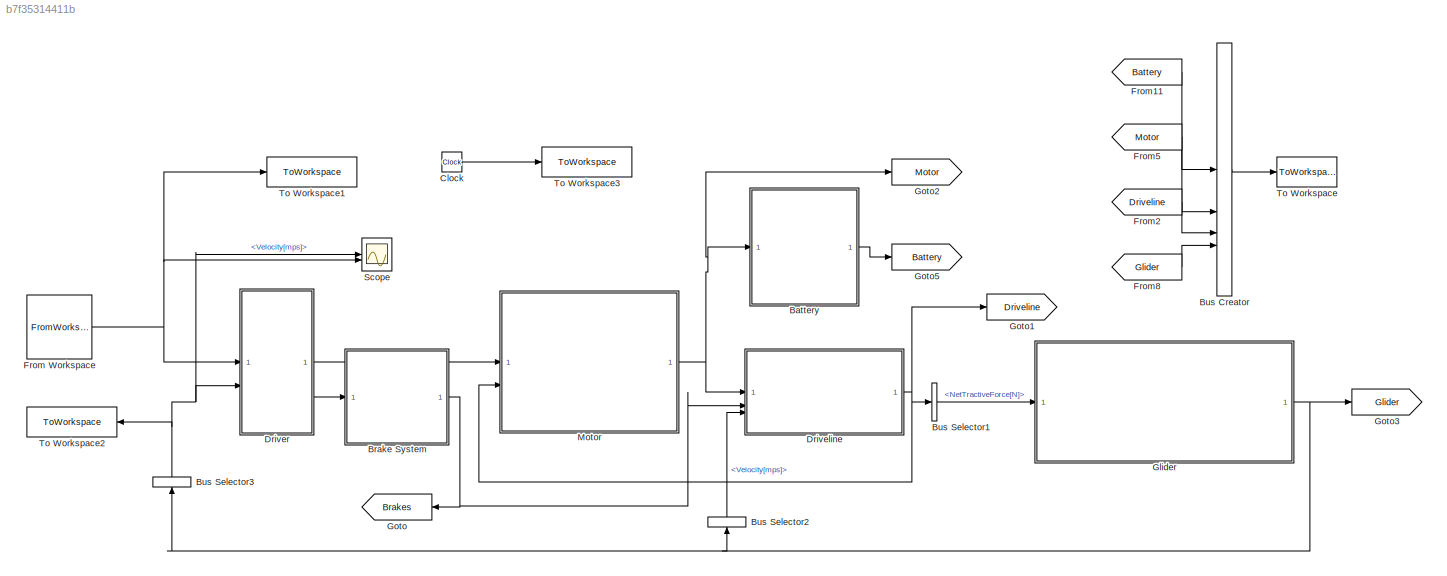
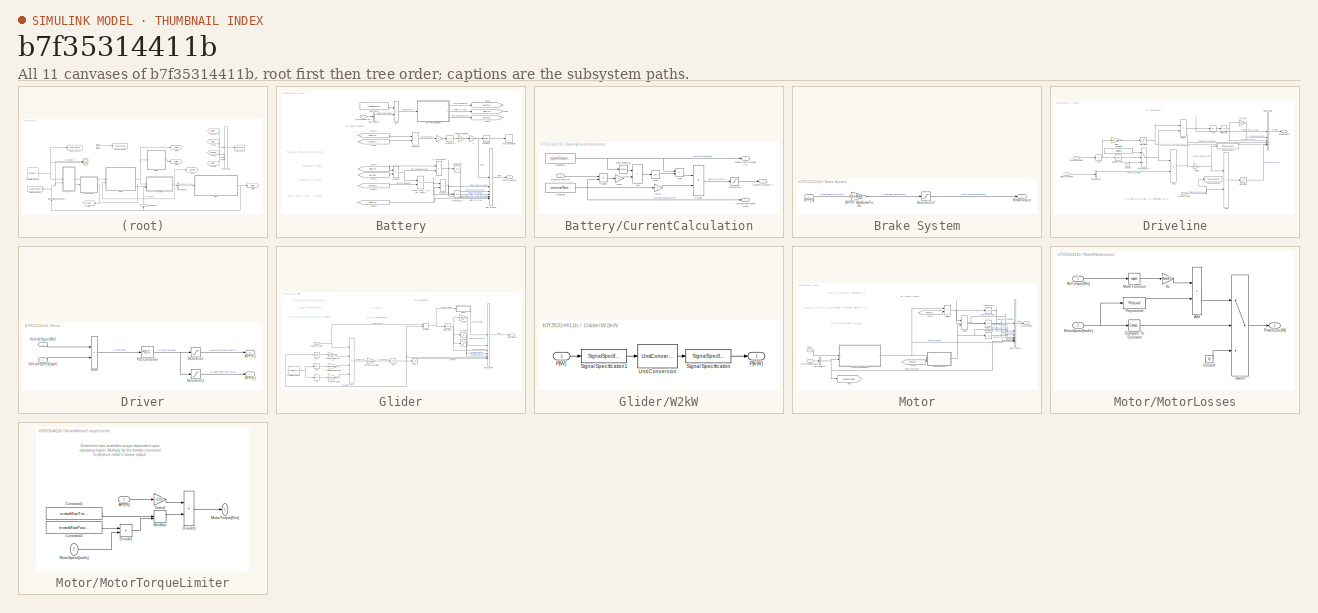
[diagram: thumbnail index - all 11 canvases of the model, root first then tree order]
MODEL slx_b7f35314411b
KIND model
CONFIG AbsTol = auto
CONFIG EnableMultiTasking = off
CONFIG FixedStep = auto
CONFIG MaxStep = auto
CONFIG MinStep = auto
CONFIG RelTol = 1e-3
CONFIG SampleTimeConstraint = Unconstrained
CONFIG SolverName = FixedStepAuto
CONFIG StartTime = 0.0
CONFIG StopTime = StopTime
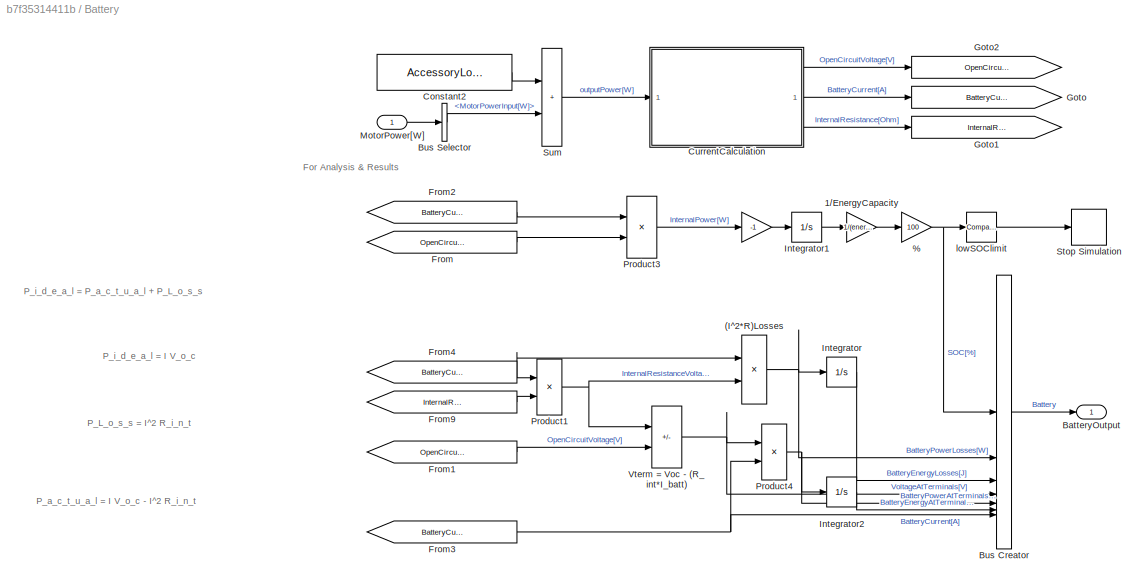
BLOCK [SubSystem] Battery
BLOCK [Gain] Battery/ 
  Gain = -1
BLOCK [Gain] Battery/%
  Gain = 100
BLOCK [Product] Battery/(I^2*R)Losses
  NameLocation = top
  RndMeth = Zero
BLOCK [Gain] Battery/1//EnergyCapacity
  Gain = 1/(energyCapacity*3600*1000)
BLOCK [Outport] Battery/BatteryOutput
  VectorParamsAs1DForOutWhenUnconnected = off
BLOCK [BusCreator] Battery/Bus Creator
  DisplayOption = bar
  InheritFromInputs = on
  Inputs = 7
BLOCK [BusSelector] Battery/Bus Selector
  OutputSignals = MotorPowerInput[W]
BLOCK [Constant] Battery/Constant2
  Value = AccessoryLoad
BLOCK [SubSystem] Battery/CurrentCalculation
BLOCK [Sum] Battery/CurrentCalculation/Add
  IconShape = rectangular
  Inputs = +-
BLOCK [Sum] Battery/CurrentCalculation/Add1
  IconShape = rectangular
  Inputs = +-
BLOCK [Outport] Battery/CurrentCalculation/BatteryCurrent[A]
  Port = 2
  VectorParamsAs1DForOutWhenUnconnected = off
BLOCK [Inport] Battery/CurrentCalculation/BatteryPower[W]
BLOCK [Constant] Battery/CurrentCalculation/Constant
  Value = internalResistance
BLOCK [Constant] Battery/CurrentCalculation/Constant1
  Value = openCircuitVoltage
BLOCK [Product] Battery/CurrentCalculation/Divide
  Inputs = */
BLOCK [Gain] Battery/CurrentCalculation/Gain
  Gain = 4
BLOCK [Gain] Battery/CurrentCalculation/Gain1
  Gain = 2
BLOCK [Outport] Battery/CurrentCalculation/InternalResistance[Ohm]
  Port = 3
  VectorParamsAs1DForOutWhenUnconnected = off
BLOCK [Math] Battery/CurrentCalculation/Math Function
  Operator = square
  SignedPower = on
BLOCK [Outport] Battery/CurrentCalculation/OpenCircuitVoltage[V]
  VectorParamsAs1DForOutWhenUnconnected = off
BLOCK [Product] Battery/CurrentCalculation/Product
  RndMeth = Zero
BLOCK [Saturate] Battery/CurrentCalculation/Saturation1
  LowerLimit = 0
  UpperLimit = 40
  ZeroCross = off
BLOCK [Sqrt] Battery/CurrentCalculation/Sqrt
BLOCK [From] Battery/From
  GotoTag = OpenCircuitVoltage_V
BLOCK [From] Battery/From1
  GotoTag = OpenCircuitVoltage_V
BLOCK [From] Battery/From2
  GotoTag = BatteryCurrent_A
BLOCK [From] Battery/From3
  GotoTag = BatteryCurrent_A
BLOCK [From] Battery/From4
  GotoTag = BatteryCurrent_A
BLOCK [From] Battery/From9
  GotoTag = InternalResistance_Ohm
BLOCK [Goto] Battery/Goto
  GotoTag = BatteryCurrent_A
BLOCK [Goto] Battery/Goto1
  GotoTag = InternalResistance_Ohm
BLOCK [Goto] Battery/Goto2
  GotoTag = OpenCircuitVoltage_V
BLOCK [Integrator] Battery/Integrator
  ZeroCross = off
BLOCK [Integrator] Battery/Integrator1
  InitialCondition = energyCapacity*3600*1000*initialSOC
  ZeroCross = off
BLOCK [Integrator] Battery/Integrator2
BLOCK [Inport] Battery/MotorPower[W]
BLOCK [Product] Battery/Product1
  RndMeth = Zero
BLOCK [Product] Battery/Product3
  RndMeth = Zero
BLOCK [Product] Battery/Product4
  RndMeth = Zero
BLOCK [Stop] Battery/Stop Simulation
BLOCK [Sum] Battery/Sum
  IconShape = rectangular
BLOCK [Sum] Battery/Vterm = Voc - (R_int*I_batt)
  IconShape = rectangular
  Inputs = -+
BLOCK [Reference] Battery/lowSOClimit  REF=simulink/Logic and Bit
Operations/Compare
To Constant
  SourceBlock = simulink/Logic and Bit\nOperations/Compare\nTo Constant
  SourceType = Compare To Constant
BLOCK [SubSystem] Brake System
BLOCK [Gain] Brake System/BPP% * MaxBrakeForce
  Gain = maxBrakeForce/100
BLOCK [Inport] Brake System/BPP[%]
BLOCK [Outport] Brake System/BrakeOutput
  VectorParamsAs1DForOutWhenUnconnected = off
BLOCK [Saturate] Brake System/Saturation2
  LowerLimit = -400
  UpperLimit = 0
  ZeroCross = off
BLOCK [BusCreator] Bus Creator
  DisplayOption = bar
  InheritFromInputs = on
  Inputs = 4
BLOCK [BusSelector] Bus Selector1
  OutputSignals = NetTractiveForce[N]
BLOCK [BusSelector] Bus Selector2
  NameLocation = right
  OutputSignals = Velocity[mps]
BLOCK [BusSelector] Bus Selector3
  NameLocation = right
  OutputSignals = Velocity[mps]
BLOCK [Clock] Clock
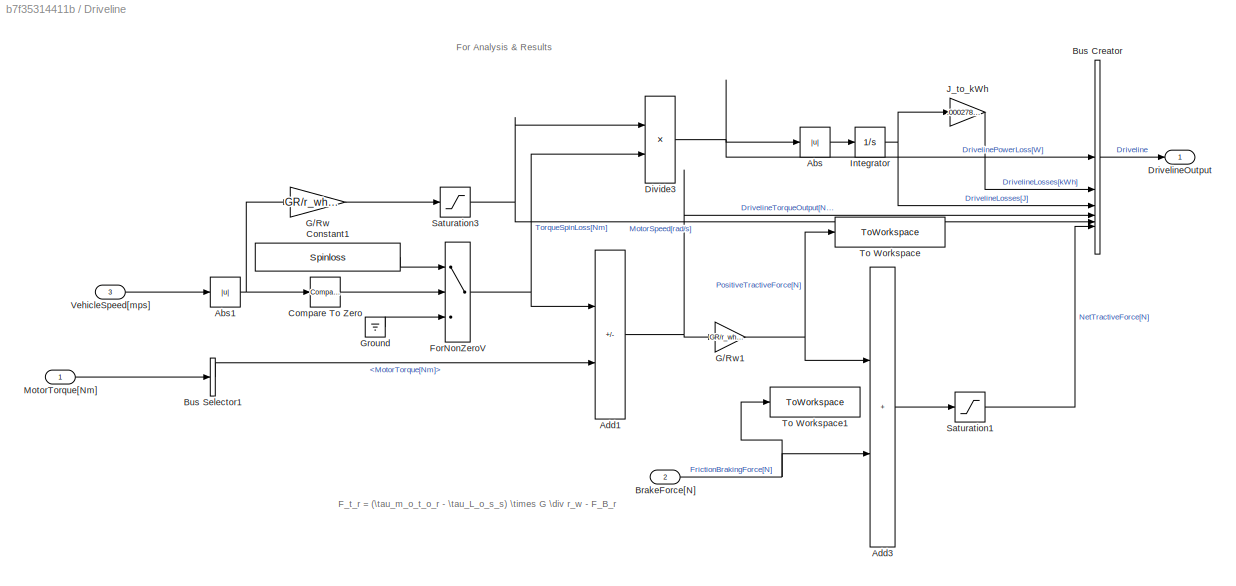
BLOCK [SubSystem] Driveline
BLOCK [Abs] Driveline/Abs
  SaturateOnIntegerOverflow = off
  ZeroCross = off
BLOCK [Abs] Driveline/Abs1
  SaturateOnIntegerOverflow = off
  ZeroCross = off
BLOCK [Sum] Driveline/Add1
  IconShape = rectangular
  Inputs = -+
BLOCK [Sum] Driveline/Add3
  IconShape = rectangular
BLOCK [Inport] Driveline/BrakeForce[N]
  Port = 2
BLOCK [BusCreator] Driveline/Bus Creator
  DisplayOption = bar
  InheritFromInputs = on
  Inputs = 6
BLOCK [BusSelector] Driveline/Bus Selector1
  OutputSignals = MotorTorque[Nm]
BLOCK [Reference] Driveline/Compare To Zero  REF=simulink/Logic and Bit
Operations/Compare
To Zero
  SourceBlock = simulink/Logic and Bit\nOperations/Compare\nTo Zero
  SourceType = Compare To Zero
BLOCK [Constant] Driveline/Constant1
  Value = Spinloss
BLOCK [Product] Driveline/Divide3
  Inputs = **
BLOCK [Outport] Driveline/DrivelineOutput
  VectorParamsAs1DForOutWhenUnconnected = off
BLOCK [Switch] Driveline/ForNonZeroV
  Criteria = u2 ~= 0
  InputSameDT = off
  SaturateOnIntegerOverflow = off
  ZeroCross = off
BLOCK [Gain] Driveline/G//Rw
  Gain = GR/r_wheel
BLOCK [Gain] Driveline/G//Rw1
  Gain = GR/r_wheel
BLOCK [Ground] Driveline/Ground
BLOCK [Integrator] Driveline/Integrator
  ZeroCross = off
BLOCK [Gain] Driveline/J_to_kWh
  Gain = .000278/1000
BLOCK [Inport] Driveline/MotorTorque[Nm]
BLOCK [Saturate] Driveline/Saturation1
  LowerLimit = maxBrakeForce
  UpperLimit = 5000
  ZeroCross = off
BLOCK [Saturate] Driveline/Saturation3
  LowerLimit = 0.00001
  UpperLimit = inf
  ZeroCross = off
BLOCK [ToWorkspace] Driveline/To Workspace
  FixptAsFi = on
  MaxDataPoints = inf
  SampleTime = -1
  VariableName = positiveTractiveForceOut
BLOCK [ToWorkspace] Driveline/To Workspace1
  FixptAsFi = on
  MaxDataPoints = inf
  SampleTime = -1
  VariableName = frictionBrakingForceOut
BLOCK [Inport] Driveline/VehicleSpeed[mps]
  Port = 3
BLOCK [SubSystem] Driver
  AncestorBlock = Driver_Glider_Library/Driver
BLOCK [Outport] Driver/APP[%]
  VectorParamsAs1DForOutWhenUnconnected = off
BLOCK [Outport] Driver/BPP[%]
  Port = 2
  VectorParamsAs1DForOutWhenUnconnected = off
BLOCK [Reference] Driver/PID Controller  REF=slpidlib/PID Controller
  SourceBlock = slpidlib/PID Controller
  SourceType = PID 1dof
BLOCK [Saturate] Driver/Saturation
  LowerLimit = 0
  UpperLimit = 100
  ZeroCross = off
BLOCK [Saturate] Driver/Saturation1
  LowerLimit = -100
  UpperLimit = 0
  ZeroCross = off
BLOCK [Sum] Driver/Sum
  IconShape = rectangular
  Inputs = +-
BLOCK [Inport] Driver/VehicleSpeedRef
BLOCK [Inport] Driver/VehicleSpeed[mph]
  Port = 2
BLOCK [FromWorkspace] From Workspace
  VariableName = driveCycle
BLOCK [From] From11
  GotoTag = Battery
BLOCK [From] From2
  GotoTag = Driveline
BLOCK [From] From5
  GotoTag = Motor
BLOCK [From] From8
  GotoTag = Glider
BLOCK [SubSystem] Glider
BLOCK [Gain] Glider/AerodynamicDrag[N]
  AttributesFormatString = %<Gain>
  Gain = 0.5*airDensity*cdaf
BLOCK [BusCreator] Glider/Bus Creator
  DisplayOption = bar
  InheritFromInputs = on
  Inputs = 7
BLOCK [Trigonometry] Glider/Cos
  Operator = cos
BLOCK [Saturate] Glider/E_brake
  LowerLimit = -inf
  UpperLimit = 0
BLOCK [Saturate] Glider/E_propel
  LowerLimit = 0
  UpperLimit = inf
BLOCK [Gain] Glider/Force2Acceleration
  AttributesFormatString = %<Gain>
  Gain = 1/massVeh
BLOCK [FromWorkspace] Glider/From Workspace
  VariableName = timeThetaData
BLOCK [Outport] Glider/GliderOutput
  VectorParamsAs1DForOutWhenUnconnected = off
BLOCK [Gain] Glider/GradeForce[N]
  Gain = massVeh*gravity
BLOCK [Integrator] Glider/Integrator4
BLOCK [Gain] Glider/J2kWh
  Gain = 0.000278/1000
BLOCK [Product] Glider/Product
BLOCK [Gain] Glider/RollingResistance[N]
  Gain = massVeh*gravity*rollingResistCoeff
BLOCK [Trigonometry] Glider/Sin
BLOCK [Sum] Glider/Sum
  IconShape = rectangular
  Inputs = +---
BLOCK [Math] Glider/Vel^2
  Operator = magnitude^2
  SignedPower = on
BLOCK [SubSystem] Glider/W2kW
BLOCK [Inport] Glider/W2kW/P[W]
BLOCK [Outport] Glider/W2kW/P[kW]
  VectorParamsAs1DForOutWhenUnconnected = off
BLOCK [SignalSpecification] Glider/W2kW/Signal Specification
  Unit = kW
BLOCK [SignalSpecification] Glider/W2kW/Signal Specification1
  Unit = W
BLOCK [UnitConversion] Glider/W2kW/Unit Conversion
BLOCK [Integrator] Glider/a2v
BLOCK [Inport] Glider/tractiveForce[N]
BLOCK [Integrator] Glider/v2x
BLOCK [Goto] Goto
  GotoTag = Brakes
  NameLocation = top
BLOCK [Goto] Goto1
  GotoTag = Driveline
BLOCK [Goto] Goto2
  GotoTag = Motor
BLOCK [Goto] Goto3
  GotoTag = Glider
BLOCK [Goto] Goto5
  GotoTag = Battery
BLOCK [SubSystem] Motor
BLOCK [Inport] Motor/APP[%]
BLOCK [Sum] Motor/Add3
  IconShape = rectangular
BLOCK [BusCreator] Motor/Bus Creator
  DisplayOption = bar
  InheritFromInputs = on
  Inputs = 8
BLOCK [BusSelector] Motor/Bus Selector
  OutputSignals = MotorSpeed[rad/s]
BLOCK [Product] Motor/Divide4
  Inputs = **
BLOCK [From] Motor/From
  GotoTag = MotorSpeed_radps
BLOCK [From] Motor/From1
  GotoTag = MotorSpeed_radps
BLOCK [Goto] Motor/Goto
  GotoTag = MotorSpeed_radps
BLOCK [Integrator] Motor/Integrator
  ZeroCross = off
BLOCK [Integrator] Motor/Integrator1
  ZeroCross = off
BLOCK [Integrator] Motor/Integrator2
  ZeroCross = off
BLOCK [SubSystem] Motor/MotorLosses
BLOCK [Sum] Motor/MotorLosses/Add
  IconShape = rectangular
BLOCK [Reference] Motor/MotorLosses/Compare To Constant  REF=simulink/Logic and Bit
Operations/Compare
To Constant
  SourceBlock = simulink/Logic and Bit\nOperations/Compare\nTo Constant
  SourceType = Compare To Constant
BLOCK [Ground] Motor/MotorLosses/Ground
BLOCK [Gain] Motor/MotorLosses/Kc
  Gain = MotorKc
BLOCK [Math] Motor/MotorLosses/Math Function
  Operator = square
  SignedPower = on
BLOCK [Inport] Motor/MotorLosses/MotorSpeed[rad//s]
  Port = 2
BLOCK [Inport] Motor/MotorLosses/NetTorque[Nm]
BLOCK [Polyval] Motor/MotorLosses/Polynomial
  Coefs = [MotorKw , 0 ,MotorKi, MotorC]
BLOCK [Outport] Motor/MotorLosses/PowerLoss[W]
  VectorParamsAs1DForOutWhenUnconnected = off
BLOCK [Switch] Motor/MotorLosses/Switch
  Criteria = u2 ~= 0
  InputSameDT = off
  SaturateOnIntegerOverflow = off
  ZeroCross = off
BLOCK [Outport] Motor/MotorOutput
  VectorParamsAs1DForOutWhenUnconnected = off
BLOCK [Inport] Motor/MotorSpeed[rad//s]
  Port = 2
BLOCK [SubSystem] Motor/MotorTorqueLimiter
BLOCK [Inport] Motor/MotorTorqueLimiter/APP[%]
BLOCK [Constant] Motor/MotorTorqueLimiter/Constant1
  Value = motorMaxTorque
BLOCK [Constant] Motor/MotorTorqueLimiter/Constant2
  Value = motorMaxPower
BLOCK [Product] Motor/MotorTorqueLimiter/Divide1
  Inputs = */
BLOCK [Product] Motor/MotorTorqueLimiter/Divide3
  Inputs = **
BLOCK [Gain] Motor/MotorTorqueLimiter/Gain4
  Gain = 1/100
BLOCK [MinMax] Motor/MotorTorqueLimiter/MinMax
  Inputs = 2
BLOCK [Inport] Motor/MotorTorqueLimiter/MotorSpeed[rad//s]
  Port = 2
BLOCK [Outport] Motor/MotorTorqueLimiter/MotorTorque[Nm]
  VectorParamsAs1DForOutWhenUnconnected = off
BLOCK [Scope] Scope
  Floating = off
  NumInputPorts = 2
  ScopeSpecificationString = Simulink.scopes.TimeScopeBlockCfg('CurrentConfiguration', extmgr.ConfigurationSet(extmgr.Configuration('Core','General UI',true),extmgr.Configuration('Core','Source UI',true),extmgr.Configuration('Sources','WiredSimulink',true),extmgr.Configuration('Visuals','Time Domain',true,'SerializedDisplays',{struct('MinYLimReal','-6.25287','MaxYLimReal','56.25032','YLabelReal','','MinYLimMag','0.00000','Max...<+1385ch>
BLOCK [ToWorkspace] To Workspace
  FixptAsFi = on
  MaxDataPoints = inf
  SampleTime = -1
  VariableName = results
BLOCK [ToWorkspace] To Workspace1
  FixptAsFi = on
  MaxDataPoints = inf
  SampleTime = -1
  VariableName = speedCommand
BLOCK [ToWorkspace] To Workspace2
  FixptAsFi = on
  MaxDataPoints = inf
  NameLocation = top
  SampleTime = -1
  VariableName = speedVehicle
BLOCK [ToWorkspace] To Workspace3
  FixptAsFi = on
  MaxDataPoints = inf
  SampleTime = -1
  VariableName = simTime
ANNOTATION Battery: P_L_o_s_s = I^2 R_i_n_t
ANNOTATION Battery: For Analysis & Results
ANNOTATION Battery: P_a_c_t_u_a_l = I V_o_c - I^2 R_i_n_t
ANNOTATION Battery: P_i_d_e_a_l = I V_o_c
ANNOTATION Battery: P_i_d_e_a_l = P_a_c_t_u_a_l + P_L_o_s_s
ANNOTATION Driveline: F_t_r = (\tau_m_o_t_o_r - \tau_L_o_s_s) \times G \div r_w - F_B_r
ANNOTATION Driveline: For Analysis & Results
ANNOTATION Glider: F_a_e_r_o = 1/2 \rho C_d A_f V ^2
ANNOTATION Glider: F_g_r_a_d_e = m g sin(\theta)
ANNOTATION Glider: F_r_r = m g C_r_r
ANNOTATION Glider: F_t_r = F_a_e_r_o + F_i + F_g_r_a_d_e + F_r_r
ANNOTATION Glider: For Analysis & Results
ANNOTATION Glider: a = (F_t_r - F_a_e_r_o - F_g_r_a_d_e - F_r_r) \div m_i
ANNOTATION Motor: For Analysis & Results
ANNOTATION Motor: P_L_o_s_s = k_c \tau ^2 + k_i \omega + k_\omega \omega ^3 + C
ANNOTATION Motor: P_i_n = \tau \omega + P_L_o_s_s
ANNOTATION Motor: P_m_o_t = \tau_m_o_t \omega_m_o_t
ANNOTATION Motor/MotorTorqueLimiter: Determine max available torque dependent upon operating region. Multiply by the throttle command to produce motor's torque output.
LINE Battery/ :1 -> Battery/Integrator1:1
NET Battery/%:1 -> Battery/Bus Creator:1, Battery/lowSOClimit:1
NET Battery/(I^2*R)Losses:1 -> Battery/Bus Creator:2, Battery/Integrator:1
LINE Battery/1//EnergyCapacity:1 -> Battery/%:1
LINE Battery/Bus Creator:1 -> Battery/BatteryOutput:1
LINE Battery/Bus Selector:1 -> Battery/Sum:2
LINE Battery/Constant2:1 -> Battery/Sum:1
LINE Battery/CurrentCalculation/Add1:1 -> Battery/CurrentCalculation/Divide:1
LINE Battery/CurrentCalculation/Add:1 -> Battery/CurrentCalculation/Sqrt:1
LINE Battery/CurrentCalculation/BatteryPower[W]:1 -> Battery/CurrentCalculation/Product:1
NET Battery/CurrentCalculation/Constant1:1 -> Battery/CurrentCalculation/Add1:1, Battery/CurrentCalculation/Math Function:1, Battery/CurrentCalculation/OpenCircuitVoltage[V]:1
NET Battery/CurrentCalculation/Constant:1 -> Battery/CurrentCalculation/Gain1:1, Battery/CurrentCalculation/InternalResistance[Ohm]:1, Battery/CurrentCalculation/Product:2
LINE Battery/CurrentCalculation/Divide:1 -> Battery/CurrentCalculation/Saturation1:1
LINE Battery/CurrentCalculation/Gain1:1 -> Battery/CurrentCalculation/Divide:2
LINE Battery/CurrentCalculation/Gain:1 -> Battery/CurrentCalculation/Add:2
LINE Battery/CurrentCalculation/Math Function:1 -> Battery/CurrentCalculation/Add:1
LINE Battery/CurrentCalculation/Product:1 -> Battery/CurrentCalculation/Gain:1
LINE Battery/CurrentCalculation/Saturation1:1 -> Battery/CurrentCalculation/BatteryCurrent[A]:1
LINE Battery/CurrentCalculation/Sqrt:1 -> Battery/CurrentCalculation/Add1:2
LINE Battery/CurrentCalculation:1 -> Battery/Goto2:1
LINE Battery/CurrentCalculation:2 -> Battery/Goto:1
LINE Battery/CurrentCalculation:3 -> Battery/Goto1:1
LINE Battery/From1:1 -> Battery/Vterm = Voc - (R_int*I_batt):2
LINE Battery/From2:1 -> Battery/Product3:1
NET Battery/From3:1 -> Battery/Bus Creator:7, Battery/Product4:2
NET Battery/From4:1 -> Battery/(I^2*R)Losses:1, Battery/Product1:1
LINE Battery/From9:1 -> Battery/Product1:2
LINE Battery/From:1 -> Battery/Product3:2
LINE Battery/Integrator1:1 -> Battery/1//EnergyCapacity:1
LINE Battery/Integrator2:1 -> Battery/Bus Creator:6
LINE Battery/Integrator:1 -> Battery/Bus Creator:3
LINE Battery/MotorPower[W]:1 -> Battery/Bus Selector:1
NET Battery/Product1:1 -> Battery/(I^2*R)Losses:2, Battery/Vterm = Voc - (R_int*I_batt):1
LINE Battery/Product3:1 -> Battery/ :1
NET Battery/Product4:1 -> Battery/Bus Creator:5, Battery/Integrator2:1
LINE Battery/Sum:1 -> Battery/CurrentCalculation:1
NET Battery/Vterm = Voc - (R_int*I_batt):1 -> Battery/Bus Creator:4, Battery/Product4:1
LINE Battery/lowSOClimit:1 -> Battery/Stop Simulation:1
LINE Battery:1 -> Goto5:1
LINE Brake System/BPP% * MaxBrakeForce:1 -> Brake System/Saturation2:1
LINE Brake System/BPP[%]:1 -> Brake System/BPP% * MaxBrakeForce:1
LINE Brake System/Saturation2:1 -> Brake System/BrakeOutput:1
NET Brake System:1 -> Driveline:2, Goto:1
LINE Bus Creator:1 -> To Workspace:1
LINE Bus Selector1:1 -> Glider:1
LINE Bus Selector2:1 -> Driveline:3
NET Bus Selector3:1 -> Driver:2, Scope:1, To Workspace2:1
LINE Clock:1 -> To Workspace3:1
NET Driveline/Abs1:1 -> Driveline/Compare To Zero:1, Driveline/G//Rw:1
LINE Driveline/Abs:1 -> Driveline/Integrator:1
NET Driveline/Add1:1 -> Driveline/Bus Creator:4, Driveline/G//Rw1:1
LINE Driveline/Add3:1 -> Driveline/Saturation1:1
NET Driveline/BrakeForce[N]:1 -> Driveline/Add3:2, Driveline/To Workspace1:1
LINE Driveline/Bus Creator:1 -> Driveline/DrivelineOutput:1
LINE Driveline/Bus Selector1:1 -> Driveline/Add1:2
LINE Driveline/Compare To Zero:1 -> Driveline/ForNonZeroV:2
LINE Driveline/Constant1:1 -> Driveline/ForNonZeroV:1
NET Driveline/Divide3:1 -> Driveline/Abs:1, Driveline/Bus Creator:1
NET Driveline/ForNonZeroV:1 -> Driveline/Add1:1, Driveline/Divide3:2
NET Driveline/G//Rw1:1 -> Driveline/Add3:1, Driveline/To Workspace:1
LINE Driveline/G//Rw:1 -> Driveline/Saturation3:1
LINE Driveline/Ground:1 -> Driveline/ForNonZeroV:3
NET Driveline/Integrator:1 -> Driveline/Bus Creator:3, Driveline/J_to_kWh:1
LINE Driveline/J_to_kWh:1 -> Driveline/Bus Creator:2
LINE Driveline/MotorTorque[Nm]:1 -> Driveline/Bus Selector1:1
LINE Driveline/Saturation1:1 -> Driveline/Bus Creator:6
NET Driveline/Saturation3:1 -> Driveline/Bus Creator:5, Driveline/Divide3:1
LINE Driveline/VehicleSpeed[mps]:1 -> Driveline/Abs1:1
NET Driveline:1 -> Bus Selector1:1, Goto1:1, Motor:2
LINE Driver:1 -> Motor:1
LINE Driver:2 -> Brake System:1
NET From Workspace:1 -> Driver:1, Scope:2, To Workspace1:1
LINE From11:1 -> Bus Creator:1
LINE From2:1 -> Bus Creator:3
LINE From5:1 -> Bus Creator:2
LINE From8:1 -> Bus Creator:4
LINE Glider/AerodynamicDrag[N]:1 -> Glider/Sum:2
LINE Glider/Bus Creator:1 -> Glider/GliderOutput:1
LINE Glider/Cos:1 -> Glider/RollingResistance[N]:1
LINE Glider/E_brake:1 -> Glider/Bus Creator:5
LINE Glider/E_propel:1 -> Glider/Bus Creator:4
LINE Glider/Force2Acceleration:1 -> Glider/a2v:1
NET Glider/From Workspace:1 -> Glider/Cos:1, Glider/Sin:1
LINE Glider/GradeForce[N]:1 -> Glider/Sum:4
NET Glider/Integrator4:1 -> Glider/Bus Creator:3, Glider/E_brake:1, Glider/E_propel:1, Glider/J2kWh:1
LINE Glider/J2kWh:1 -> Glider/Bus Creator:2
NET Glider/Product:1 -> Glider/Integrator4:1, Glider/W2kW:1
LINE Glider/RollingResistance[N]:1 -> Glider/Sum:3
LINE Glider/Sin:1 -> Glider/GradeForce[N]:1
LINE Glider/Sum:1 -> Glider/Force2Acceleration:1
LINE Glider/Vel^2:1 -> Glider/AerodynamicDrag[N]:1
LINE Glider/W2kW/P[W]:1 -> Glider/W2kW/Signal Specification1:1
LINE Glider/W2kW/Signal Specification1:1 -> Glider/W2kW/Unit Conversion:1
LINE Glider/W2kW/Signal Specification:1 -> Glider/W2kW/P[kW]:1
LINE Glider/W2kW/Unit Conversion:1 -> Glider/W2kW/Signal Specification:1
LINE Glider/W2kW:1 -> Glider/Bus Creator:1
NET Glider/a2v:1 -> Glider/Bus Creator:6, Glider/Product:2, Glider/Vel^2:1, Glider/v2x:1
NET Glider/tractiveForce[N]:1 -> Glider/Product:1, Glider/Sum:1
LINE Glider/v2x:1 -> Glider/Bus Creator:7
NET Glider:1 -> Bus Selector2:1, Bus Selector3:1, Goto3:1
LINE Motor/APP[%]:1 -> Motor/MotorTorqueLimiter:1
NET Motor/Add3:1 -> Motor/Bus Creator:3, Motor/Integrator1:1
LINE Motor/Bus Creator:1 -> Motor/MotorOutput:1
NET Motor/Bus Selector:1 -> Motor/Bus Creator:8, Motor/Goto:1, Motor/MotorTorqueLimiter:2
NET Motor/Divide4:1 -> Motor/Add3:1, Motor/Bus Creator:1, Motor/Integrator2:1
LINE Motor/From1:1 -> Motor/Divide4:2
LINE Motor/From:1 -> Motor/MotorLosses:2
LINE Motor/Integrator1:1 -> Motor/Bus Creator:4
LINE Motor/Integrator2:1 -> Motor/Bus Creator:2
LINE Motor/Integrator:1 -> Motor/Bus Creator:6
LINE Motor/MotorLosses/Add:1 -> Motor/MotorLosses/Switch:1
LINE Motor/MotorLosses/Compare To Constant:1 -> Motor/MotorLosses/Switch:2
LINE Motor/MotorLosses/Ground:1 -> Motor/MotorLosses/Switch:3
LINE Motor/MotorLosses/Kc:1 -> Motor/MotorLosses/Add:1
LINE Motor/MotorLosses/Math Function:1 -> Motor/MotorLosses/Kc:1
NET Motor/MotorLosses/MotorSpeed[rad//s]:1 -> Motor/MotorLosses/Compare To Constant:1, Motor/MotorLosses/Polynomial:1
LINE Motor/MotorLosses/NetTorque[Nm]:1 -> Motor/MotorLosses/Math Function:1
LINE Motor/MotorLosses/Polynomial:1 -> Motor/MotorLosses/Add:2
LINE Motor/MotorLosses/Switch:1 -> Motor/MotorLosses/PowerLoss[W]:1
NET Motor/MotorLosses:1 -> Motor/Add3:2, Motor/Bus Creator:5, Motor/Integrator:1
LINE Motor/MotorSpeed[rad//s]:1 -> Motor/Bus Selector:1
LINE Motor/MotorTorqueLimiter/APP[%]:1 -> Motor/MotorTorqueLimiter/Gain4:1
LINE Motor/MotorTorqueLimiter/Constant1:1 -> Motor/MotorTorqueLimiter/MinMax:1
LINE Motor/MotorTorqueLimiter/Constant2:1 -> Motor/MotorTorqueLimiter/Divide1:1
LINE Motor/MotorTorqueLimiter/Divide1:1 -> Motor/MotorTorqueLimiter/MinMax:2
LINE Motor/MotorTorqueLimiter/Divide3:1 -> Motor/MotorTorqueLimiter/MotorTorque[Nm]:1
LINE Motor/MotorTorqueLimiter/Gain4:1 -> Motor/MotorTorqueLimiter/Divide3:1
LINE Motor/MotorTorqueLimiter/MinMax:1 -> Motor/MotorTorqueLimiter/Divide3:2
LINE Motor/MotorTorqueLimiter/MotorSpeed[rad//s]:1 -> Motor/MotorTorqueLimiter/Divide1:2
NET Motor/MotorTorqueLimiter:1 -> Motor/Bus Creator:7, Motor/Divide4:1, Motor/MotorLosses:1
NET Motor:1 -> Battery:1, Driveline:1, Goto2:1
note: NET lines group one-source signal fan-out (src -> all destinations, sorted); 1:1 wires keep LINE
